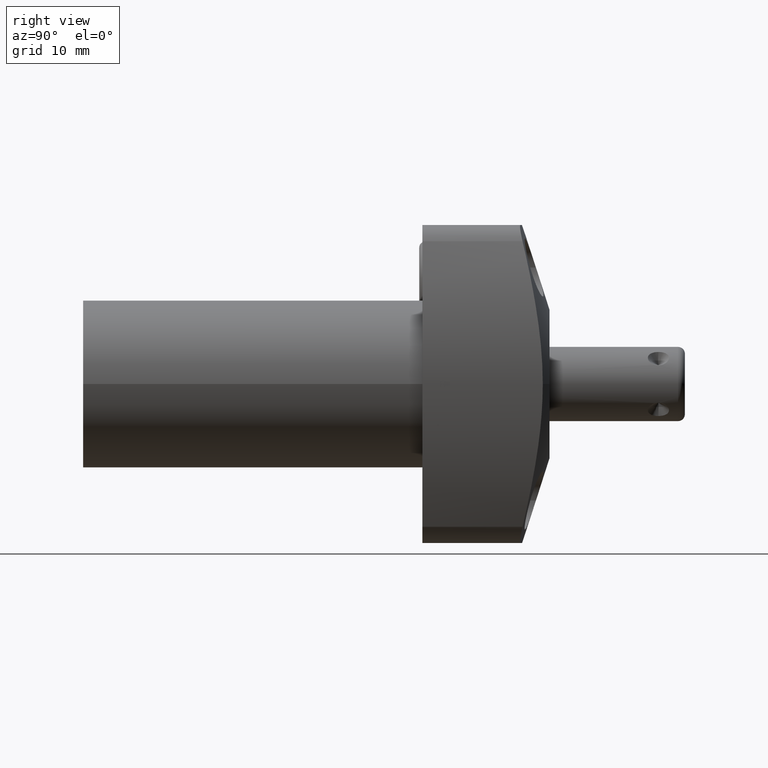
[diagram: clean part render]
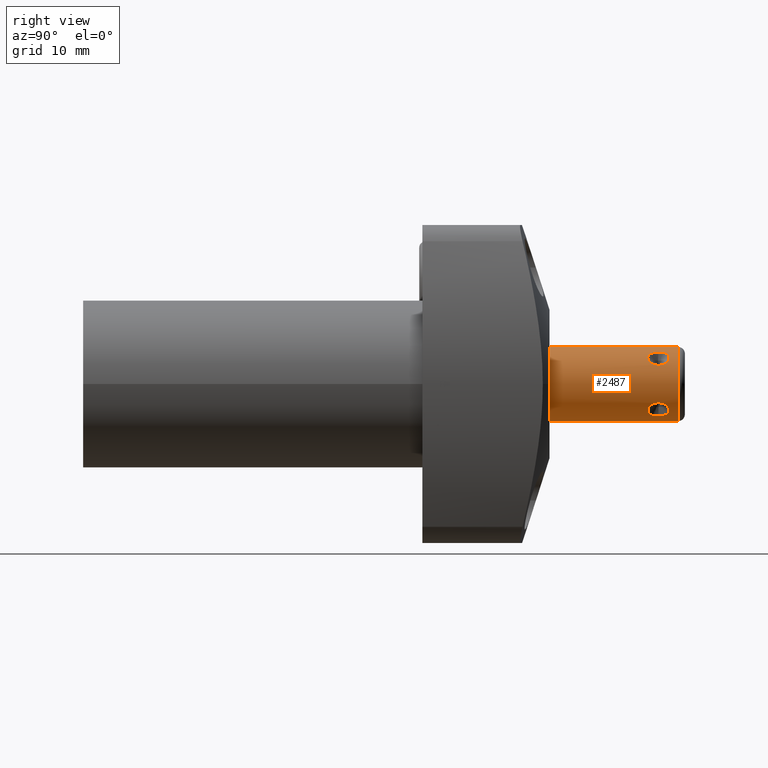
[diagram: same view with one face highlighted and labeled with its STEP entity id]
A machine part, right view. The second image highlights one B-rep face of the part: STEP entity #2487.
In plain terms, the highlighted cylindrical surface (partial cylindrical patch) has radius 5.5562 mm, axis along (0, 1, 0).
Its self-contained STEP definition (entity closure, byte-faithful):
#80=CARTESIAN_POINT('',(0.E0,1.508E0,0.E0));
#81=DIRECTION('',(0.E0,1.E0,0.E0));
#82=DIRECTION('',(0.E0,0.E0,1.E0));
#83=AXIS2_PLACEMENT_3D('',#80,#81,#82);
#88=CARTESIAN_POINT('',(1.887975933374E-1,1.392E0,1.104854345604E-1));
#89=CARTESIAN_POINT('',(1.887975933374E-1,1.384854067109E0,1.104854345604E-1));
#90=CARTESIAN_POINT('',(1.877363362023E-1,1.371454119233E0,1.123305232750E-1));
#91=CARTESIAN_POINT('',(1.829433469987E-1,1.352935093074E0,1.201142911805E-1));
#92=CARTESIAN_POINT('',(1.753010094745E-1,1.339263942045E0,1.311223253596E-1));
#93=CARTESIAN_POINT('',(1.656817760812E-1,1.331226132132E0,1.431241412846E-1));
#94=CARTESIAN_POINT('',(1.548144507160E-1,1.328636677529E0,1.548214930389E-1));
#95=CARTESIAN_POINT('',(1.431236321278E-1,1.331227158466E0,1.656819758769E-1));
#96=CARTESIAN_POINT('',(1.311218595092E-1,1.339264111785E0,1.753014205988E-1));
#97=CARTESIAN_POINT('',(1.201139287117E-1,1.352935968655E0,1.829435548974E-1));
#98=CARTESIAN_POINT('',(1.123308898818E-1,1.371453089772E0,1.877361177889E-1));
#99=CARTESIAN_POINT('',(1.104854345604E-1,1.384853612984E0,1.887975933374E-1));
#100=CARTESIAN_POINT('',(1.104854345604E-1,1.392E0,1.887975933374E-1));
#105=CARTESIAN_POINT('',(1.104854345604E-1,1.392E0,1.887975933374E-1));
#106=CARTESIAN_POINT('',(1.104854345604E-1,1.399146409133E0,1.887975933374E-1));
#107=CARTESIAN_POINT('',(1.123308851640E-1,1.412547015199E0,1.877361204177E-1));
#108=CARTESIAN_POINT('',(1.201142218128E-1,1.431064654820E0,1.829433784945E-1));
#109=CARTESIAN_POINT('',(1.311226192861E-1,1.444736577347E0,1.753008491069E-1));
#110=CARTESIAN_POINT('',(1.431244169983E-1,1.452773346541E0,1.656813490467E-1));
#111=CARTESIAN_POINT('',(1.548164215600E-1,1.455363242576E0,1.548194964592E-1));
#112=CARTESIAN_POINT('',(1.656816694952E-1,1.452773683036E0,1.431241929603E-1));
#113=CARTESIAN_POINT('',(1.753011447717E-1,1.444736007054E0,1.311221724367E-1));
#114=CARTESIAN_POINT('',(1.829433551968E-1,1.431064738494E0,1.201142610613E-1));
#115=CARTESIAN_POINT('',(1.877362342946E-1,1.412546434654E0,1.123306965840E-1));
#116=CARTESIAN_POINT('',(1.887975933374E-1,1.399146175684E0,1.104854345604E-1));
#117=CARTESIAN_POINT('',(1.887975933374E-1,1.392E0,1.104854345604E-1));
#122=CARTESIAN_POINT('',(1.887975933374E-1,1.392E0,-1.104854345604E-1));
#123=CARTESIAN_POINT('',(1.887975933374E-1,1.384853777600E0,
-1.104854345604E-1));
#124=CARTESIAN_POINT('',(1.877362164844E-1,1.371453451936E0,
-1.123307275507E-1));
#125=CARTESIAN_POINT('',(1.829433364538E-1,1.352935231935E0,
-1.201142867996E-1));
#126=CARTESIAN_POINT('',(1.753011177022E-1,1.339263915439E0,
-1.311222197751E-1));
#127=CARTESIAN_POINT('',(1.656815072885E-1,1.331226292829E0,
-1.431243633318E-1));
#128=CARTESIAN_POINT('',(1.548168316702E-1,1.328636793794E0,
-1.548190750354E-1));
#129=CARTESIAN_POINT('',(1.431245789423E-1,1.331226532056E0,
-1.656812242104E-1));
#130=CARTESIAN_POINT('',(1.311226795414E-1,1.339263371095E0,
-1.753008031047E-1));
#131=CARTESIAN_POINT('',(1.201142766504E-1,1.352935240827E0,
-1.829433438312E-1));
#132=CARTESIAN_POINT('',(1.123308735593E-1,1.371452996602E0,
-1.877361278652E-1));
#133=CARTESIAN_POINT('',(1.104854345604E-1,1.384853597798E0,
-1.887975933374E-1));
#134=CARTESIAN_POINT('',(1.104854345604E-1,1.392E0,-1.887975933374E-1));
#139=CARTESIAN_POINT('',(1.104854345604E-1,1.392E0,-1.887975933374E-1));
#140=CARTESIAN_POINT('',(1.104854345604E-1,1.399146402588E0,
-1.887975933374E-1));
#141=CARTESIAN_POINT('',(1.123308913713E-1,1.412546953481E0,
-1.877361179086E-1));
#142=CARTESIAN_POINT('',(1.201140088971E-1,1.431064172787E0,
-1.829435028534E-1));
#143=CARTESIAN_POINT('',(1.311219493726E-1,1.444735982181E0,
-1.753013561706E-1));
#144=CARTESIAN_POINT('',(1.431239121983E-1,1.452773003379E0,
-1.656817456104E-1));
#145=CARTESIAN_POINT('',(1.548147833937E-1,1.455363272188E0,
-1.548211445876E-1));
#146=CARTESIAN_POINT('',(1.656815943307E-1,1.452773907288E0,
-1.431243363678E-1));
#147=CARTESIAN_POINT('',(1.753009323234E-1,1.444736194775E0,
-1.311224387701E-1));
#148=CARTESIAN_POINT('',(1.829433179270E-1,1.431064973455E0,
-1.201143347109E-1));
#149=CARTESIAN_POINT('',(1.877363100364E-1,1.412546044377E0,
-1.123305678624E-1));
#150=CARTESIAN_POINT('',(1.887975933374E-1,1.399145999432E0,
-1.104854345604E-1));
#151=CARTESIAN_POINT('',(1.887975933374E-1,1.392E0,-1.104854345604E-1));
#172=CARTESIAN_POINT('',(0.E0,7.5E-1,0.E0));
#173=DIRECTION('',(0.E0,1.E0,0.E0));
#174=DIRECTION('',(0.E0,0.E0,1.E0));
#175=AXIS2_PLACEMENT_3D('',#172,#173,#174);
#1888=DIRECTION('',(0.E0,-1.E0,0.E0));
#1889=VECTOR('',#1888,7.58E-1);
#1890=CARTESIAN_POINT('',(0.E0,1.508E0,-2.1875E-1));
#1891=LINE('',#1890,#1889);
#1903=DIRECTION('',(0.E0,-1.E0,0.E0));
#1904=VECTOR('',#1903,7.58E-1);
#1905=CARTESIAN_POINT('',(0.E0,1.508E0,2.1875E-1));
#1906=LINE('',#1905,#1904);
#2200=CARTESIAN_POINT('',(0.E0,7.5E-1,2.1875E-1));
#2201=CARTESIAN_POINT('',(0.E0,7.5E-1,-2.1875E-1));
#2202=VERTEX_POINT('',#2200);
#2203=VERTEX_POINT('',#2201);
#2204=CARTESIAN_POINT('',(0.E0,1.508E0,2.1875E-1));
#2205=VERTEX_POINT('',#2204);
#2206=CARTESIAN_POINT('',(0.E0,1.508E0,-2.1875E-1));
#2207=VERTEX_POINT('',#2206);
#2332=VERTEX_POINT('',#88);
#2333=VERTEX_POINT('',#100);
#2344=VERTEX_POINT('',#122);
#2345=VERTEX_POINT('',#134);
#2461=CARTESIAN_POINT('',(0.E0,7.101E-1,0.E0));
#2462=DIRECTION('',(0.E0,1.E0,0.E0));
#2463=DIRECTION('',(0.E0,0.E0,-1.E0));
#2464=AXIS2_PLACEMENT_3D('',#2461,#2462,#2463);
#2465=CYLINDRICAL_SURFACE('',#2464,2.1875E-1);
#2467=ORIENTED_EDGE('',*,*,#2466,.F.);
#2469=ORIENTED_EDGE('',*,*,#2468,.F.);
#2470=ORIENTED_EDGE('',*,*,#2444,.T.);
#2472=ORIENTED_EDGE('',*,*,#2471,.T.);
#2473=EDGE_LOOP('',(#2467,#2469,#2470,#2472));
#2474=FACE_OUTER_BOUND('',#2473,.F.);
#2476=ORIENTED_EDGE('',*,*,#2475,.F.);
#2478=ORIENTED_EDGE('',*,*,#2477,.F.);
#2479=EDGE_LOOP('',(#2476,#2478));
#2480=FACE_BOUND('',#2479,.F.);
#2482=ORIENTED_EDGE('',*,*,#2481,.T.);
#2484=ORIENTED_EDGE('',*,*,#2483,.T.);
#2485=EDGE_LOOP('',(#2482,#2484));
#2486=FACE_BOUND('',#2485,.F.);
#84=CIRCLE('',#83,2.1875E-1);
#101=B_SPLINE_CURVE_WITH_KNOTS('',3,(#88,#89,#90,#91,#92,#93,#94,#95,#96,#97,
#98,#99,#100),.UNSPECIFIED.,.F.,.F.,(4,1,1,1,1,1,1,1,1,1,4),(0.E0,1.E-1,2.E-1,
3.E-1,4.E-1,5.E-1,6.E-1,7.E-1,8.E-1,9.E-1,1.E0),.UNSPECIFIED.);
#118=B_SPLINE_CURVE_WITH_KNOTS('',3,(#105,#106,#107,#108,#109,#110,#111,#112,
#113,#114,#115,#116,#117),.UNSPECIFIED.,.F.,.F.,(4,1,1,1,1,1,1,1,1,1,4),(0.E0,
1.E-1,2.E-1,3.E-1,4.E-1,5.E-1,6.E-1,7.E-1,8.E-1,9.E-1,1.E0),.UNSPECIFIED.);
#135=B_SPLINE_CURVE_WITH_KNOTS('',3,(#122,#123,#124,#125,#126,#127,#128,#129,
#130,#131,#132,#133,#134),.UNSPECIFIED.,.F.,.F.,(4,1,1,1,1,1,1,1,1,1,4),(0.E0,
1.E-1,2.E-1,3.E-1,4.E-1,5.E-1,6.E-1,7.E-1,8.E-1,9.E-1,1.E0),.UNSPECIFIED.);
#152=B_SPLINE_CURVE_WITH_KNOTS('',3,(#139,#140,#141,#142,#143,#144,#145,#146,
#147,#148,#149,#150,#151),.UNSPECIFIED.,.F.,.F.,(4,1,1,1,1,1,1,1,1,1,4),(0.E0,
1.E-1,2.E-1,3.E-1,4.E-1,5.E-1,6.E-1,7.E-1,8.E-1,9.E-1,1.E0),.UNSPECIFIED.);
#176=CIRCLE('',#175,2.1875E-1);
#2444=EDGE_CURVE('',#2205,#2207,#84,.T.);
#2466=EDGE_CURVE('',#2202,#2203,#176,.T.);
#2468=EDGE_CURVE('',#2205,#2202,#1906,.T.);
#2471=EDGE_CURVE('',#2207,#2203,#1891,.T.);
#2475=EDGE_CURVE('',#2332,#2333,#101,.T.);
#2477=EDGE_CURVE('',#2333,#2332,#118,.T.);
#2481=EDGE_CURVE('',#2344,#2345,#135,.T.);
#2483=EDGE_CURVE('',#2345,#2344,#152,.T.);
#2487=ADVANCED_FACE('',(#2474,#2480,#2486),#2465,.T.);